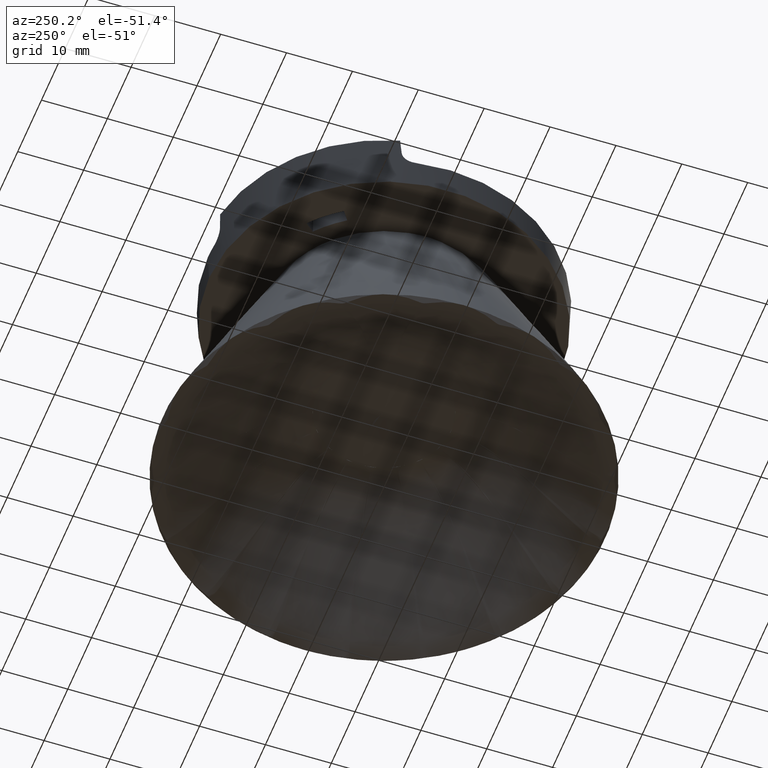
[diagram: clean part render]
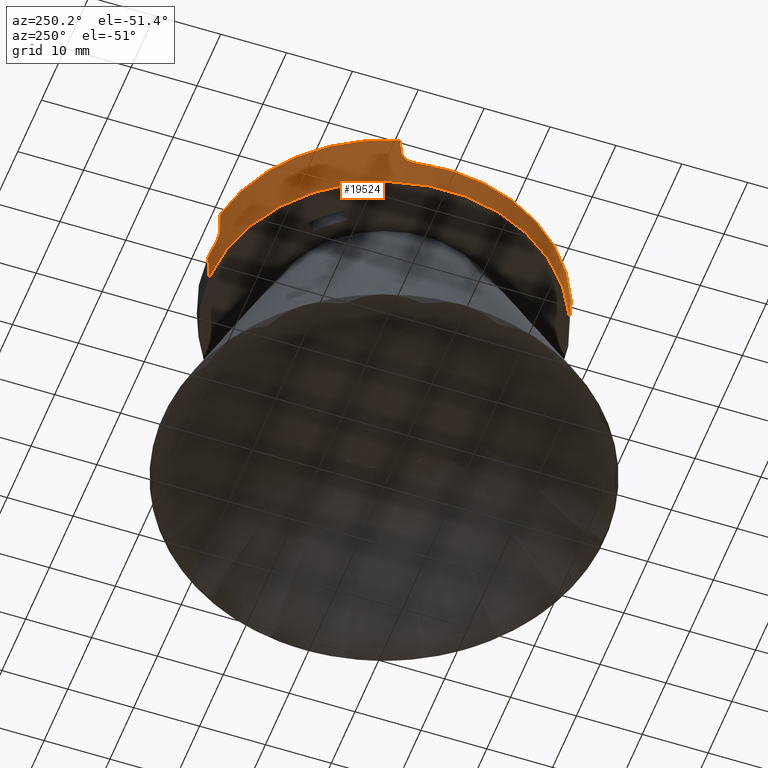
[diagram: same view with one face highlighted and labeled with its STEP entity id]
A machine part, auxiliary view. The second image highlights one B-rep face of the part: STEP entity #19524.
In plain terms, the highlighted conical surface has half-angle 2.5 deg.
Its self-contained STEP definition (entity closure, byte-faithful):
#149 = CARTESIAN_POINT ( 'NONE',  ( 4.064368499810500500, -26.48279968758785700, 0.8987413000034623100 ) ) ;
#220 = ORIENTED_EDGE ( 'NONE', *, *, #18274, .F. ) ;
#824 = VERTEX_POINT ( 'NONE', #26343 ) ;
#990 = VERTEX_POINT ( 'NONE', #26957 ) ;
#2097 = CARTESIAN_POINT ( 'NONE',  ( 26.33626959099001000, -4.706595845877721700, 0.0000000000000000000 ) ) ;
#2195 = CARTESIAN_POINT ( 'NONE',  ( 25.98433141005902100, -6.652440622787064100, 1.576977796836217100 ) ) ;
#2546 = CARTESIAN_POINT ( 'NONE',  ( 3.832562201626670700, -26.50459272040181300, 0.6085931622844132900 ) ) ;
#3272 = CIRCLE ( 'NONE', #20926, 26.94999999999999900 ) ;
#4170 = EDGE_CURVE ( 'NONE', #824, #990, #27581, .T. ) ;
#4385 = CARTESIAN_POINT ( 'NONE',  ( 0.0000000000000000000, -8.602182583667841100E-015, 4.500000000000007100 ) ) ;
#4487 = CARTESIAN_POINT ( 'NONE',  ( 4.636732466163407700, -26.54813010434495300, 4.499999999999998200 ) ) ;
#4595 = ORIENTED_EDGE ( 'NONE', *, *, #19297, .T. ) ;
#4704 = CARTESIAN_POINT ( 'NONE',  ( -1.159873081662430000E-015, -8.602182583667841100E-015, 0.0000000000000000000 ) ) ;
#4854 = CARTESIAN_POINT ( 'NONE',  ( 4.362443003654600000, -26.46525178018850600, 1.576984503088293600 ) ) ;
#4865 = CARTESIAN_POINT ( 'NONE',  ( 3.300423123702116700E-015, 26.94999999999999200, 4.500000000000016900 ) ) ;
#4953 = CARTESIAN_POINT ( 'NONE',  ( 3.552903842321316800, -26.53294713385222900, 0.3672652880009422700 ) ) ;
#5237 = CARTESIAN_POINT ( 'NONE',  ( -1.159873081662430000E-015, -8.602182583667841100E-015, 0.0000000000000000000 ) ) ;
#6043 = CARTESIAN_POINT ( 'NONE',  ( 25.98940670906374700, -6.676327500751637200, 1.825688514504567400 ) ) ;
#6291 = ORIENTED_EDGE ( 'NONE', *, *, #6650, .F. ) ;
#6650 = EDGE_CURVE ( 'NONE', #26183, #30754, #12477, .T. ) ;
#6785 = DIRECTION ( 'NONE',  ( 0.0000000000000000000, 1.000000000000000000, 3.540251991789402400E-016 ) ) ;
#6888 = CARTESIAN_POINT ( 'NONE',  ( 4.552962673325885700, -26.52316395466785100, 3.606606365787414800 ) ) ;
#6903 = CARTESIAN_POINT ( 'NONE',  ( 26.18306796445359600, -5.534738055020349100, 0.1805231914634566300 ) ) ;
#7100 = DIRECTION ( 'NONE',  ( 1.000000000000000000, 0.0000000000000000000, 0.0000000000000000000 ) ) ;
#7251 = CARTESIAN_POINT ( 'NONE',  ( 4.294335494465442200, -26.46602386606264900, 1.337688518919191800 ) ) ;
#7348 = CARTESIAN_POINT ( 'NONE',  ( 3.231909822386731500, -26.56579257036192500, 0.1806913000355780100 ) ) ;
#7628 = DIRECTION ( 'NONE',  ( 1.000000000000000000, 0.0000000000000000000, 0.0000000000000000000 ) ) ;
#7738 = CIRCLE ( 'NONE', #23547, 26.55705151382342400 ) ;
#7891 = CARTESIAN_POINT ( 'NONE',  ( 2.393328690318739000, -26.64625899081962900, 0.0000000000000000000 ) ) ;
#8279 = CARTESIAN_POINT ( 'NONE',  ( 0.0000000000000000000, -5.469192964976586900E-015, -4.499999999999986700 ) ) ;
#8527 = CARTESIAN_POINT ( 'NONE',  ( 26.02541846476220800, -6.847283330263824300, 3.606606365786898700 ) ) ;
#9082 = CIRCLE ( 'NONE', #13095, 26.75352575691171000 ) ;
#9108 = EDGE_CURVE ( 'NONE', #16695, #12790, #22038, .T. ) ;
#9250 = CARTESIAN_POINT ( 'NONE',  ( 0.0000000000000000000, -8.602182583667841100E-015, 4.500000000000007100 ) ) ;
#9263 = CARTESIAN_POINT ( 'NONE',  ( 4.385796013673470400, -26.47238945227388400, 1.825688514504588500 ) ) ;
#9274 = CARTESIAN_POINT ( 'NONE',  ( 26.12285861843868100, -5.849102572235145700, 0.3652814472936427600 ) ) ;
#9451 = EDGE_LOOP ( 'NONE', ( #25344, #27811, #220, #29554, #4595, #29475, #10770, #19094, #10710, #6291 ) ) ;
#9731 = CARTESIAN_POINT ( 'NONE',  ( 2.642217605957035300, -26.62390414608495700, -6.818615225397117700E-015 ) ) ;
#9841 = B_SPLINE_CURVE_WITH_KNOTS ( 'NONE', 3,
 ( #28624, #4854, #7251, #14411, #149, #16781, #2546, #19163, #4953, #21563, #7348, #23979, #9731, #26339 ),
 .UNSPECIFIED., .F., .F.,
 ( 4, 2, 2, 2, 2, 2, 4 ),
 ( 9.425552601768581900E-017, 0.0007390566606986443200, 0.001108584991047919000, 0.001478113321397193900, 0.001847641651746467700, 0.002217169982095740800, 0.002956226642794289800 ),
 .UNSPECIFIED. ) ;
#10404 = CARTESIAN_POINT ( 'NONE',  ( 4.385796013673470400, -26.47238945227388400, 1.825688514504588500 ) ) ;
#10666 = DIRECTION ( 'NONE',  ( 0.0000000000000000000, 1.000000000000000000, 3.592634940255392100E-016 ) ) ;
#10710 = ORIENTED_EDGE ( 'NONE', *, *, #12381, .F. ) ;
#10770 = ORIENTED_EDGE ( 'NONE', *, *, #29402, .T. ) ;
#11679 = CARTESIAN_POINT ( 'NONE',  ( 26.06981999711052500, -6.127393842773151400, 0.6079480315566632200 ) ) ;
#11855 = VERTEX_POINT ( 'NONE', #14347 ) ;
#12273 = CARTESIAN_POINT ( 'NONE',  ( 3.276361968410819900E-015, 26.75352575691170300, 0.0000000000000000000 ) ) ;
#12381 = EDGE_CURVE ( 'NONE', #30754, #27315, #25970, .T. ) ;
#12477 = LINE ( 'NONE', #15296, #18756 ) ;
#12531 = CARTESIAN_POINT ( 'NONE',  ( 3.276361968410819900E-015, 26.55705151382341700, -4.499999999999976900 ) ) ;
#12701 = EDGE_CURVE ( 'NONE', #19484, #11855, #3272, .T. ) ;
#12790 = VERTEX_POINT ( 'NONE', #12273 ) ;
#13095 = AXIS2_PLACEMENT_3D ( 'NONE', #4704, #21304, #7100 ) ;
#13227 = EDGE_CURVE ( 'NONE', #16695, #26183, #7738, .T. ) ;
#14073 = CARTESIAN_POINT ( 'NONE',  ( 26.02806820456394700, -6.355449680022900300, 0.8962874783270093900 ) ) ;
#14347 = CARTESIAN_POINT ( 'NONE',  ( 4.636732466163407700, -26.54813010434495300, 4.499999999999998200 ) ) ;
#14411 = CARTESIAN_POINT ( 'NONE',  ( 4.128949943302243900, -26.47739579806408000, 1.003620092604159600 ) ) ;
#14980 = FACE_OUTER_BOUND ( 'NONE', #9451, .T. ) ;
#15296 = CARTESIAN_POINT ( 'NONE',  ( 0.0000000000000000000, -26.95000000000000600, 4.499999999999998200 ) ) ;
#15841 = CARTESIAN_POINT ( 'NONE',  ( 0.0000000000000000000, -26.55705151382343100, -4.499999999999996400 ) ) ;
#16434 = CARTESIAN_POINT ( 'NONE',  ( 25.99119714750909800, -6.583564763872454200, 1.335147094108784800 ) ) ;
#16695 = VERTEX_POINT ( 'NONE', #12531 ) ;
#16781 = CARTESIAN_POINT ( 'NONE',  ( 3.916691860816075500, -26.49634397552041400, 0.7016450156115721100 ) ) ;
#18274 = EDGE_CURVE ( 'NONE', #824, #12790, #9082, .T. ) ;
#18756 = VECTOR ( 'NONE', #22251, 1000.000000000000000 ) ;
#18814 = CARTESIAN_POINT ( 'NONE',  ( 25.98940670906374700, -6.676327500751637200, 1.825688514504567400 ) ) ;
#19094 = ORIENTED_EDGE ( 'NONE', *, *, #21684, .T. ) ;
#19163 = CARTESIAN_POINT ( 'NONE',  ( 3.650625678805092400, -26.52290350595529100, 0.4415864741231699800 ) ) ;
#19297 = EDGE_CURVE ( 'NONE', #990, #19484, #26494, .T. ) ;
#19484 = VERTEX_POINT ( 'NONE', #28052 ) ;
#19524 = ADVANCED_FACE ( 'NONE', ( #14980 ), #20533, .T. ) ;
#20533 = CONICAL_SURFACE ( 'NONE', #24059, 26.94999999999999900, 0.04363323129985458000 ) ;
#20926 = AXIS2_PLACEMENT_3D ( 'NONE', #4385, #20985, #6785 ) ;
#20985 = DIRECTION ( 'NONE',  ( -0.0000000000000000000, 3.481099576323616500E-016, -1.000000000000000000 ) ) ;
#21103 = CARTESIAN_POINT ( 'NONE',  ( 26.24775931610873100, -5.192986770256444700, 0.04583712761692496100 ) ) ;
#21304 = DIRECTION ( 'NONE',  ( 0.0000000000000000000, 0.0000000000000000000, 1.000000000000000000 ) ) ;
#21359 =( BOUNDED_CURVE ( )  B_SPLINE_CURVE ( 3, ( #4487, #6888, #23502, #9263 ),
 .UNSPECIFIED., .F., .T. ) 
 B_SPLINE_CURVE_WITH_KNOTS ( ( 4, 4 ),
 ( 2.094700888105577100, 2.102240740090646700 ),
 .UNSPECIFIED. ) 
 CURVE ( )  GEOMETRIC_REPRESENTATION_ITEM ( )  RATIONAL_B_SPLINE_CURVE ( ( 1.000000000000000000, 0.9999952625582810800, 0.9999952625582810800, 1.000000000000000000 ) ) 
 REPRESENTATION_ITEM ( '' )  );
#21563 = CARTESIAN_POINT ( 'NONE',  ( 3.343984401363931300, -26.55434861577466100, 0.2368820984168259800 ) ) ;
#21684 = EDGE_CURVE ( 'NONE', #25444, #27315, #9841, .T. ) ;
#21848 = DIRECTION ( 'NONE',  ( 0.0000000000000000000, 0.0000000000000000000, 1.000000000000000000 ) ) ;
#22038 = LINE ( 'NONE', #4865, #27617 ) ;
#22251 = DIRECTION ( 'NONE',  ( 0.0000000000000000000, -0.04361938736533269000, 0.9990482215818579100 ) ) ;
#23008 = CARTESIAN_POINT ( 'NONE',  ( 0.0000000000000000000, -26.75352575691171700, 0.0000000000000000000 ) ) ;
#23488 = DIRECTION ( 'NONE',  ( 0.0000000000000000000, -3.481099576323616500E-016, 1.000000000000000000 ) ) ;
#23502 = CARTESIAN_POINT ( 'NONE',  ( 4.469316792895009300, -26.49791695103813500, 2.715164980802748500 ) ) ;
#23520 = CARTESIAN_POINT ( 'NONE',  ( 26.16233458671749500, -5.643112202454036100, 0.2355269552812040100 ) ) ;
#23547 = AXIS2_PLACEMENT_3D ( 'NONE', #8279, #24903, #10666 ) ;
#23979 = CARTESIAN_POINT ( 'NONE',  ( 2.888279234315235000, -26.60020984638304900, 0.04673638986336776900 ) ) ;
#24059 = AXIS2_PLACEMENT_3D ( 'NONE', #9250, #23488, #25962 ) ;
#24903 = DIRECTION ( 'NONE',  ( -0.0000000000000000000, 3.481099576323616500E-016, -1.000000000000000000 ) ) ;
#25156 = CARTESIAN_POINT ( 'NONE',  ( 26.04298859218764400, -6.932910297067480500, 4.500000000000004400 ) ) ;
#25344 = ORIENTED_EDGE ( 'NONE', *, *, #13227, .F. ) ;
#25444 = VERTEX_POINT ( 'NONE', #10404 ) ;
#25791 = CARTESIAN_POINT ( 'NONE',  ( 26.29230691803644500, -4.952593769803895500, -2.591920818598158100E-016 ) ) ;
#25841 = DIRECTION ( 'NONE',  ( 5.341834311772276500E-018, 0.04361938736533200300, 0.9990482215818580200 ) ) ;
#25892 = CARTESIAN_POINT ( 'NONE',  ( 26.10394097473570700, -5.947635227036466100, 0.4409921936102685900 ) ) ;
#25962 = DIRECTION ( 'NONE',  ( 0.0000000000000000000, -1.000000000000000000, -3.540251991789402400E-016 ) ) ;
#25970 = CIRCLE ( 'NONE', #27901, 26.75352575691171000 ) ;
#26183 = VERTEX_POINT ( 'NONE', #15841 ) ;
#26339 = CARTESIAN_POINT ( 'NONE',  ( 2.393328690318739000, -26.64625899081962900, 0.0000000000000000000 ) ) ;
#26343 = CARTESIAN_POINT ( 'NONE',  ( 26.33626959099001000, -4.706595845877721700, 0.0000000000000000000 ) ) ;
#26494 =( BOUNDED_CURVE ( )  B_SPLINE_CURVE ( 3, ( #6043, #29812, #8527, #25156 ),
 .UNSPECIFIED., .F., .F. ) 
 B_SPLINE_CURVE_WITH_KNOTS ( ( 4, 4 ),
 ( 4.180944567088936000, 4.188484419074004700 ),
 .UNSPECIFIED. ) 
 CURVE ( )  GEOMETRIC_REPRESENTATION_ITEM ( )  RATIONAL_B_SPLINE_CURVE ( ( 1.000000000000000000, 0.9999952625582810800, 0.9999952625582810800, 1.000000000000000000 ) ) 
 REPRESENTATION_ITEM ( '' )  );
#26957 = CARTESIAN_POINT ( 'NONE',  ( 25.98940670906374700, -6.676327500751637200, 1.825688514504567400 ) ) ;
#27315 = VERTEX_POINT ( 'NONE', #7891 ) ;
#27581 = B_SPLINE_CURVE_WITH_KNOTS ( 'NONE', 3,
 ( #2097, #25791, #21103, #6903, #23520, #9274, #25892, #11679, #28277, #14073, #30658, #16434, #2195, #18814 ),
 .UNSPECIFIED., .F., .F.,
 ( 4, 2, 2, 2, 2, 2, 4 ),
 ( 0.0000000000000000000, 0.0007390681291387053200, 0.001108602193708059100, 0.001478136258277412800, 0.001847670322846766900, 0.002217204387416120800, 0.002956272516554829100 ),
 .UNSPECIFIED. ) ;
#27617 = VECTOR ( 'NONE', #25841, 999.9999999999998900 ) ;
#27811 = ORIENTED_EDGE ( 'NONE', *, *, #9108, .T. ) ;
#27901 = AXIS2_PLACEMENT_3D ( 'NONE', #5237, #21848, #7628 ) ;
#28052 = CARTESIAN_POINT ( 'NONE',  ( 26.04298859218764400, -6.932910297067480500, 4.500000000000004400 ) ) ;
#28277 = CARTESIAN_POINT ( 'NONE',  ( 26.05455816697850600, -6.208916420264065600, 0.6990282251579516000 ) ) ;
#28624 = CARTESIAN_POINT ( 'NONE',  ( 4.385796013673470400, -26.47238945227388400, 1.825688514504588500 ) ) ;
#29402 = EDGE_CURVE ( 'NONE', #11855, #25444, #21359, .T. ) ;
#29475 = ORIENTED_EDGE ( 'NONE', *, *, #12701, .T. ) ;
#29554 = ORIENTED_EDGE ( 'NONE', *, *, #4170, .T. ) ;
#29812 = CARTESIAN_POINT ( 'NONE',  ( 26.00755775244031300, -6.761755326307874900, 2.715164980802293700 ) ) ;
#30658 = CARTESIAN_POINT ( 'NONE',  ( 26.01681609557480000, -6.420700554659504200, 1.003377596260276400 ) ) ;
#30754 = VERTEX_POINT ( 'NONE', #23008 ) ;